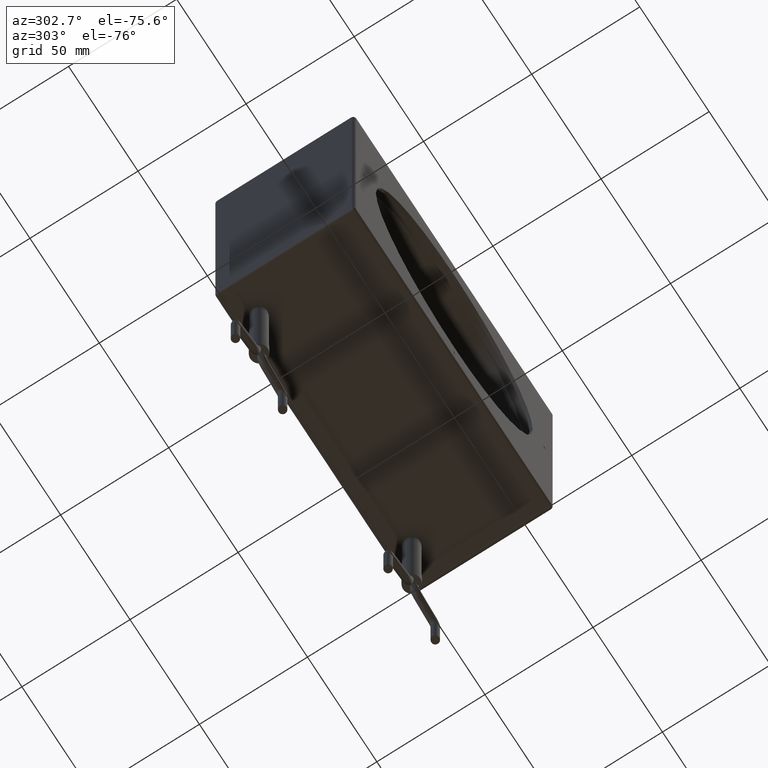
[diagram: clean part render]
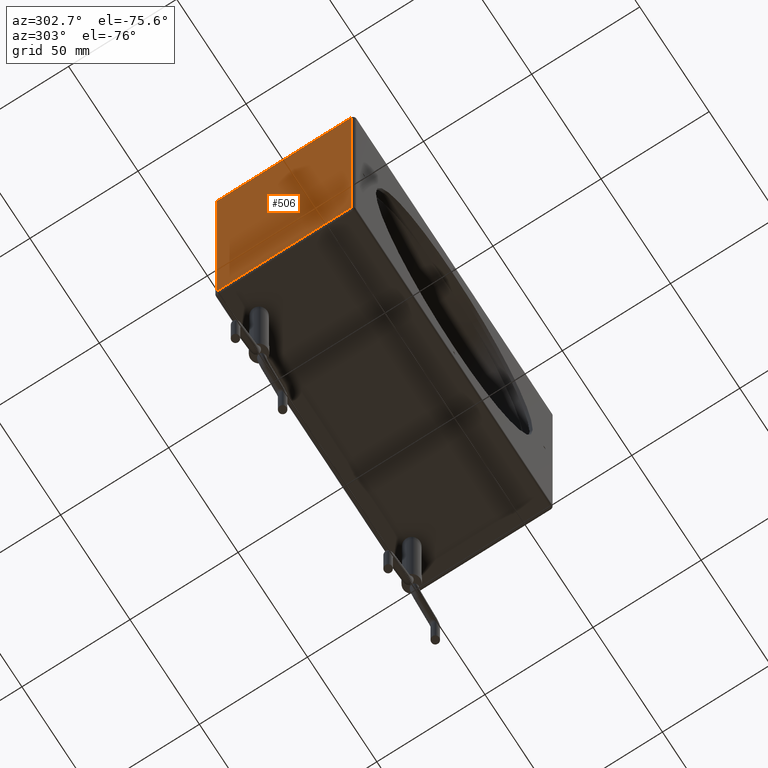
[diagram: same view with one face highlighted and labeled with its STEP entity id]
A machine part, auxiliary view. The second image highlights one B-rep face of the part: STEP entity #506.
In plain terms, the highlighted planar face has unit normal (-1, 0, 0).
Its self-contained STEP definition (entity closure, byte-faithful):
#95 = ORIENTED_EDGE ( 'NONE', *, *, #1822, .T. ) ;
#104 = LINE ( 'NONE', #1218, #1301 ) ;
#224 = VERTEX_POINT ( 'NONE', #360 ) ;
#294 = CARTESIAN_POINT ( 'NONE',  ( -71.99999999999998600, 50.00000000000001400, 70.50000000000019900 ) ) ;
#296 = EDGE_CURVE ( 'NONE', #412, #224, #1265, .T. ) ;
#360 = CARTESIAN_POINT ( 'NONE',  ( -71.99999999999998600, 1.499999999999984200, -70.50000000000000000 ) ) ;
#383 = ORIENTED_EDGE ( 'NONE', *, *, #1453, .T. ) ;
#412 = VERTEX_POINT ( 'NONE', #728 ) ;
#473 = PLANE ( 'NONE',  #1853 ) ;
#506 = ADVANCED_FACE ( 'NONE', ( #1588 ), #473, .T. ) ;
#532 = LINE ( 'NONE', #294, #882 ) ;
#537 = DIRECTION ( 'NONE',  ( -0.0000000000000000000, -1.000000000000000000, -0.0000000000000000000 ) ) ;
#567 = ORIENTED_EDGE ( 'NONE', *, *, #296, .T. ) ;
#579 = VECTOR ( 'NONE', #983, 1000.000000000000000 ) ;
#687 = CARTESIAN_POINT ( 'NONE',  ( -71.99999999999998600, 1.499999999999980500, -72.00000000000000000 ) ) ;
#728 = CARTESIAN_POINT ( 'NONE',  ( -71.99999999999998600, 63.50000000000001400, -70.50000000000000000 ) ) ;
#785 = DIRECTION ( 'NONE',  ( 0.0000000000000000000, 0.0000000000000000000, 1.000000000000000000 ) ) ;
#810 = EDGE_LOOP ( 'NONE', ( #1629, #567, #383, #95 ) ) ;
#882 = VECTOR ( 'NONE', #1348, 1000.000000000000000 ) ;
#983 = DIRECTION ( 'NONE',  ( -0.0000000000000000000, 2.220446049250313600E-016, 1.000000000000000000 ) ) ;
#1036 = VERTEX_POINT ( 'NONE', #1891 ) ;
#1205 = VECTOR ( 'NONE', #537, 1000.000000000000000 ) ;
#1207 = EDGE_CURVE ( 'NONE', #1036, #412, #104, .T. ) ;
#1218 = CARTESIAN_POINT ( 'NONE',  ( -71.99999999999998600, 63.50000000000001400, -72.00000000000001400 ) ) ;
#1265 = LINE ( 'NONE', #1578, #1205 ) ;
#1280 = LINE ( 'NONE', #687, #579 ) ;
#1301 = VECTOR ( 'NONE', #1362, 1000.000000000000000 ) ;
#1348 = DIRECTION ( 'NONE',  ( 0.0000000000000000000, 1.000000000000000000, -0.0000000000000000000 ) ) ;
#1362 = DIRECTION ( 'NONE',  ( -0.0000000000000000000, 0.0000000000000000000, -1.000000000000000000 ) ) ;
#1453 = EDGE_CURVE ( 'NONE', #224, #1741, #1280, .T. ) ;
#1511 = CARTESIAN_POINT ( 'NONE',  ( -71.99999999999998600, 50.00000000000001400, -72.00000000000001400 ) ) ;
#1578 = CARTESIAN_POINT ( 'NONE',  ( -71.99999999999998600, 50.00000000000001400, -70.50000000000000000 ) ) ;
#1588 = FACE_OUTER_BOUND ( 'NONE', #810, .T. ) ;
#1622 = CARTESIAN_POINT ( 'NONE',  ( -71.99999999999998600, 1.500000000000015300, 70.50000000000019900 ) ) ;
#1629 = ORIENTED_EDGE ( 'NONE', *, *, #1207, .T. ) ;
#1660 = DIRECTION ( 'NONE',  ( -1.000000000000000000, 0.0000000000000000000, 0.0000000000000000000 ) ) ;
#1741 = VERTEX_POINT ( 'NONE', #1622 ) ;
#1822 = EDGE_CURVE ( 'NONE', #1741, #1036, #532, .T. ) ;
#1853 = AXIS2_PLACEMENT_3D ( 'NONE', #1511, #1660, #785 ) ;
#1891 = CARTESIAN_POINT ( 'NONE',  ( -71.99999999999998600, 63.50000000000001400, 70.50000000000019900 ) ) ;